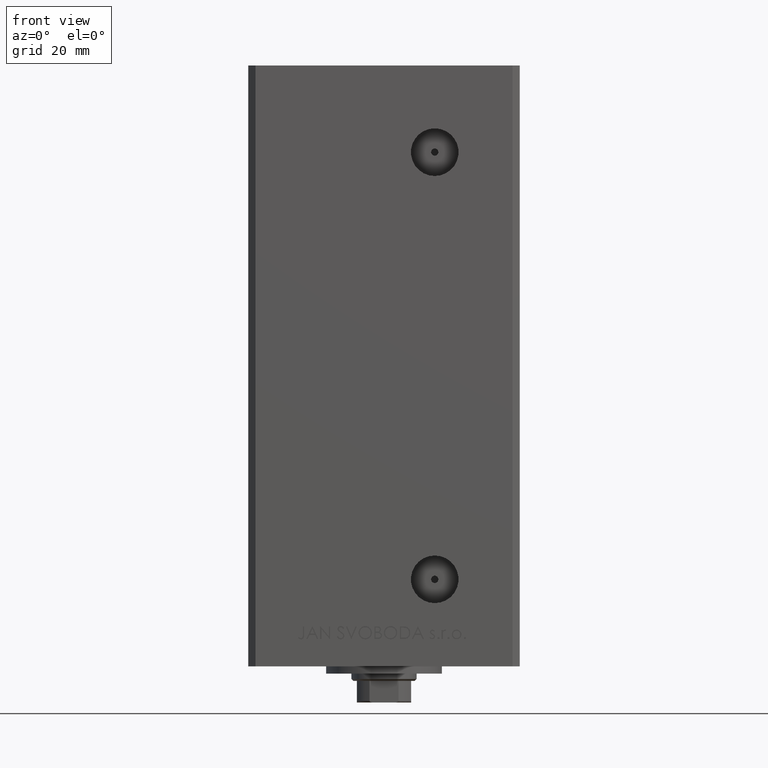
[diagram: clean part render]
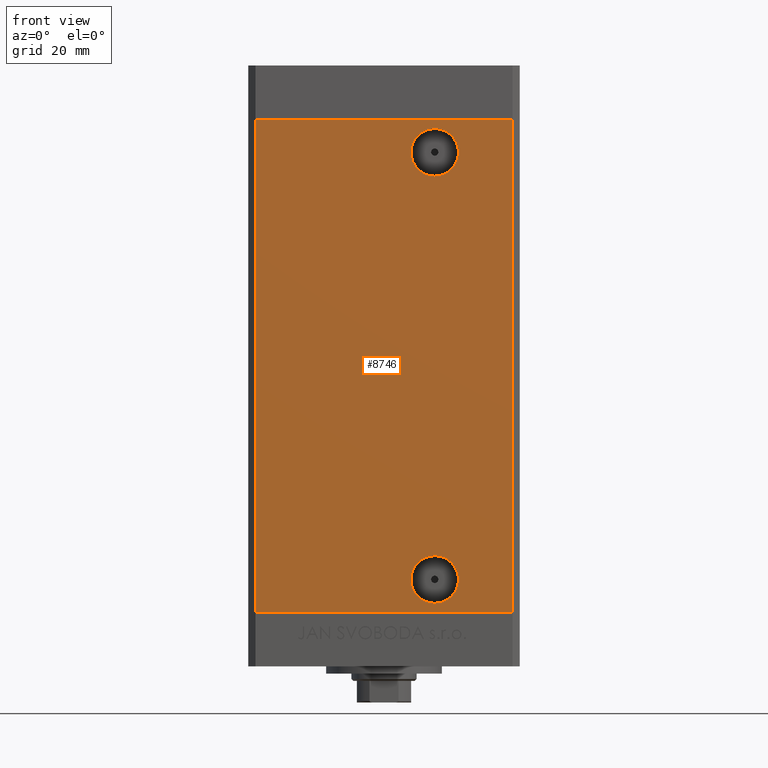
[diagram: same view with one face highlighted and labeled with its STEP entity id]
A machine part, front view. The second image highlights one B-rep face of the part: STEP entity #8746.
In plain terms, the highlighted planar face has unit normal (0, 1, 0).
Its self-contained STEP definition (entity closure, byte-faithful):
#133 = AXIS2_PLACEMENT_3D ( 'NONE', #48869, #44838, #10458 ) ;
#3186 = VECTOR ( 'NONE', #18098, 1000.000000000000000 ) ;
#3195 = CARTESIAN_POINT ( 'NONE',  ( 13.99999999999999112, -32.50000000000000000, 127.0000000000000000 ) ) ;
#3209 = LINE ( 'NONE', #34086, #4993 ) ;
#3748 = CARTESIAN_POINT ( 'NONE',  ( 13.99999999999999112, -32.50000000000000000, 2.420000000000009699 ) ) ;
#3937 = CARTESIAN_POINT ( 'NONE',  ( 35.49999999999999289, -32.50000000000000000, 136.0000000000000000 ) ) ;
#4615 = EDGE_CURVE ( 'NONE', #17605, #23268, #32342, .T. ) ;
#4993 = VECTOR ( 'NONE', #18525, 1000.000000000000000 ) ;
#5281 = EDGE_CURVE ( 'NONE', #41847, #32244, #9874, .T. ) ;
#5517 = DIRECTION ( 'NONE',  ( 0.000000000000000000, 1.000000000000000000, 0.000000000000000000 ) ) ;
#6298 = DIRECTION ( 'NONE',  ( 1.000000000000000000, 0.000000000000000000, 0.000000000000000000 ) ) ;
#6351 = EDGE_LOOP ( 'NONE', ( #21789, #44944, #25952, #12172 ) ) ;
#7220 = DIRECTION ( 'NONE',  ( 0.000000000000000000, 0.000000000000000000, -1.000000000000000000 ) ) ;
#8342 = VERTEX_POINT ( 'NONE', #44530 ) ;
#8746 = ADVANCED_FACE ( 'NONE', ( #44414, #48193, #21821 ), #29358, .F. ) ;
#9874 = CIRCLE ( 'NONE', #16275, 6.580000000000002736 ) ;
#10441 = CARTESIAN_POINT ( 'NONE',  ( 13.99999999999999112, -32.50000000000000000, 127.0000000000000000 ) ) ;
#10458 = DIRECTION ( 'NONE',  ( 0.000000000000000000, 0.000000000000000000, -1.000000000000000000 ) ) ;
#10965 = CARTESIAN_POINT ( 'NONE',  ( 13.99999999999999112, -32.50000000000000000, 133.5800000000000125 ) ) ;
#11121 = VERTEX_POINT ( 'NONE', #3937 ) ;
#11592 = AXIS2_PLACEMENT_3D ( 'NONE', #36388, #5517, #24839 ) ;
#11969 = AXIS2_PLACEMENT_3D ( 'NONE', #3195, #18007, #7220 ) ;
#12172 = ORIENTED_EDGE ( 'NONE', *, *, #46525, .T. ) ;
#13954 = DIRECTION ( 'NONE',  ( -0.000000000000000000, 1.000000000000000000, -0.000000000000000000 ) ) ;
#14841 = LINE ( 'NONE', #48991, #3186 ) ;
#15137 = EDGE_LOOP ( 'NONE', ( #16908, #32357 ) ) ;
#15201 = CIRCLE ( 'NONE', #11969, 6.580000000000002736 ) ;
#16138 = VECTOR ( 'NONE', #47979, 1000.000000000000000 ) ;
#16275 = AXIS2_PLACEMENT_3D ( 'NONE', #10441, #13954, #33286 ) ;
#16908 = ORIENTED_EDGE ( 'NONE', *, *, #5281, .T. ) ;
#17605 = VERTEX_POINT ( 'NONE', #3748 ) ;
#18007 = DIRECTION ( 'NONE',  ( -0.000000000000000000, 1.000000000000000000, -0.000000000000000000 ) ) ;
#18098 = DIRECTION ( 'NONE',  ( -0.000000000000000000, -0.000000000000000000, -1.000000000000000000 ) ) ;
#18525 = DIRECTION ( 'NONE',  ( -0.000000000000000000, -0.000000000000000000, -1.000000000000000000 ) ) ;
#21222 = VERTEX_POINT ( 'NONE', #36197 ) ;
#21789 = ORIENTED_EDGE ( 'NONE', *, *, #43510, .T. ) ;
#21821 = FACE_BOUND ( 'NONE', #15137, .T. ) ;
#23268 = VERTEX_POINT ( 'NONE', #34131 ) ;
#23522 = AXIS2_PLACEMENT_3D ( 'NONE', #43143, #26865, #38641 ) ;
#23544 = EDGE_CURVE ( 'NONE', #32244, #41847, #15201, .T. ) ;
#23720 = ORIENTED_EDGE ( 'NONE', *, *, #4615, .F. ) ;
#24227 = EDGE_CURVE ( 'NONE', #11121, #33376, #14841, .T. ) ;
#24839 = DIRECTION ( 'NONE',  ( 0.000000000000000000, -0.000000000000000000, 1.000000000000000000 ) ) ;
#25952 = ORIENTED_EDGE ( 'NONE', *, *, #28977, .F. ) ;
#26865 = DIRECTION ( 'NONE',  ( 0.000000000000000000, -1.000000000000000000, 0.000000000000000000 ) ) ;
#28056 = VECTOR ( 'NONE', #6298, 1000.000000000000000 ) ;
#28977 = EDGE_CURVE ( 'NONE', #8342, #11121, #40677, .T. ) ;
#29148 = CARTESIAN_POINT ( 'NONE',  ( -35.49999999999999289, -32.50000000000000000, 0.000000000000000000 ) ) ;
#29358 = PLANE ( 'NONE',  #11592 ) ;
#30074 = CARTESIAN_POINT ( 'NONE',  ( 13.99999999999999112, -32.50000000000000000, 120.4200000000000017 ) ) ;
#31194 = EDGE_LOOP ( 'NONE', ( #23720, #45380 ) ) ;
#32244 = VERTEX_POINT ( 'NONE', #10965 ) ;
#32342 = CIRCLE ( 'NONE', #23522, 6.579999999999998295 ) ;
#32357 = ORIENTED_EDGE ( 'NONE', *, *, #23544, .T. ) ;
#33022 = CIRCLE ( 'NONE', #133, 6.579999999999998295 ) ;
#33286 = DIRECTION ( 'NONE',  ( 0.000000000000000000, 0.000000000000000000, -1.000000000000000000 ) ) ;
#33376 = VERTEX_POINT ( 'NONE', #42215 ) ;
#34086 = CARTESIAN_POINT ( 'NONE',  ( -35.49999999999999289, -32.50000000000000000, 136.0000000000000000 ) ) ;
#34131 = CARTESIAN_POINT ( 'NONE',  ( 13.99999999999999112, -32.50000000000000000, 15.58000000000000718 ) ) ;
#36179 = LINE ( 'NONE', #29148, #16138 ) ;
#36197 = CARTESIAN_POINT ( 'NONE',  ( -35.49999999999999289, -32.50000000000000000, 0.000000000000000000 ) ) ;
#36388 = CARTESIAN_POINT ( 'NONE',  ( -35.49999999999999289, -32.50000000000000000, 136.0000000000000000 ) ) ;
#38641 = DIRECTION ( 'NONE',  ( 0.000000000000000000, 0.000000000000000000, -1.000000000000000000 ) ) ;
#40677 = LINE ( 'NONE', #48469, #28056 ) ;
#41847 = VERTEX_POINT ( 'NONE', #30074 ) ;
#42215 = CARTESIAN_POINT ( 'NONE',  ( 35.49999999999999289, -32.50000000000000000, 0.000000000000000000 ) ) ;
#43143 = CARTESIAN_POINT ( 'NONE',  ( 13.99999999999999112, -32.50000000000000000, 9.000000000000007105 ) ) ;
#43510 = EDGE_CURVE ( 'NONE', #21222, #33376, #36179, .T. ) ;
#44414 = FACE_BOUND ( 'NONE', #31194, .T. ) ;
#44530 = CARTESIAN_POINT ( 'NONE',  ( -35.49999999999999289, -32.50000000000000000, 136.0000000000000000 ) ) ;
#44838 = DIRECTION ( 'NONE',  ( 0.000000000000000000, -1.000000000000000000, 0.000000000000000000 ) ) ;
#44930 = EDGE_CURVE ( 'NONE', #23268, #17605, #33022, .T. ) ;
#44944 = ORIENTED_EDGE ( 'NONE', *, *, #24227, .F. ) ;
#45380 = ORIENTED_EDGE ( 'NONE', *, *, #44930, .F. ) ;
#46525 = EDGE_CURVE ( 'NONE', #8342, #21222, #3209, .T. ) ;
#47979 = DIRECTION ( 'NONE',  ( 1.000000000000000000, 0.000000000000000000, 0.000000000000000000 ) ) ;
#48193 = FACE_OUTER_BOUND ( 'NONE', #6351, .T. ) ;
#48469 = CARTESIAN_POINT ( 'NONE',  ( -35.49999999999999289, -32.50000000000000000, 136.0000000000000000 ) ) ;
#48869 = CARTESIAN_POINT ( 'NONE',  ( 13.99999999999999112, -32.50000000000000000, 9.000000000000007105 ) ) ;
#48991 = CARTESIAN_POINT ( 'NONE',  ( 35.49999999999999289, -32.50000000000000000, 136.0000000000000000 ) ) ;